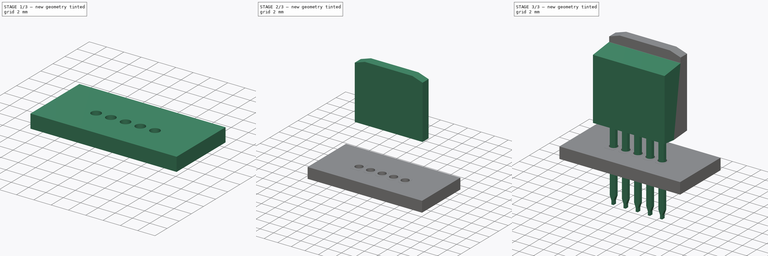
[diagram: build sequence overview — one tinted view per stage of 3, left to right]
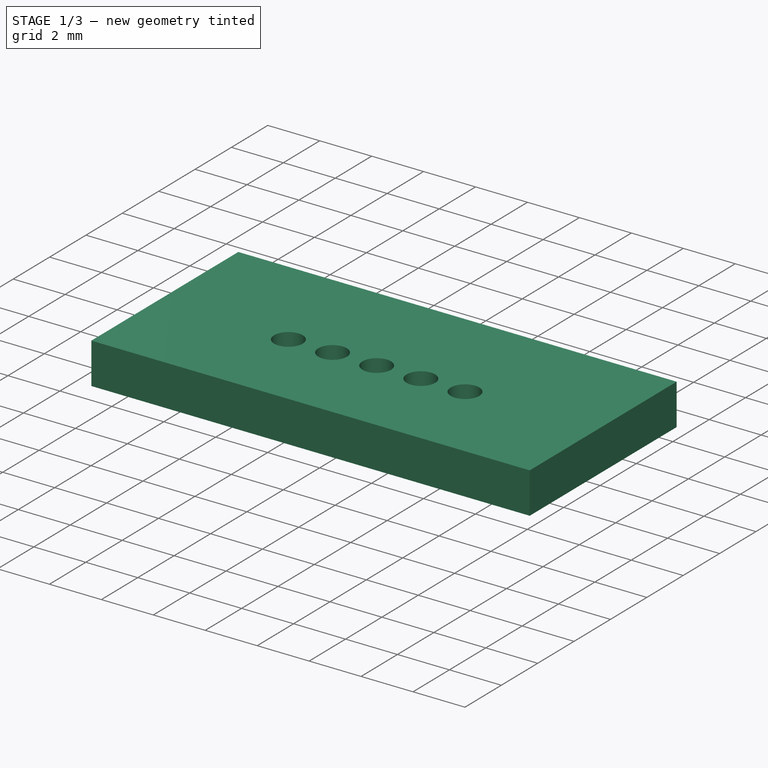
[diagram: stage 1 of 3 — iso view after this stage's code; geometry added in this stage tinted green]
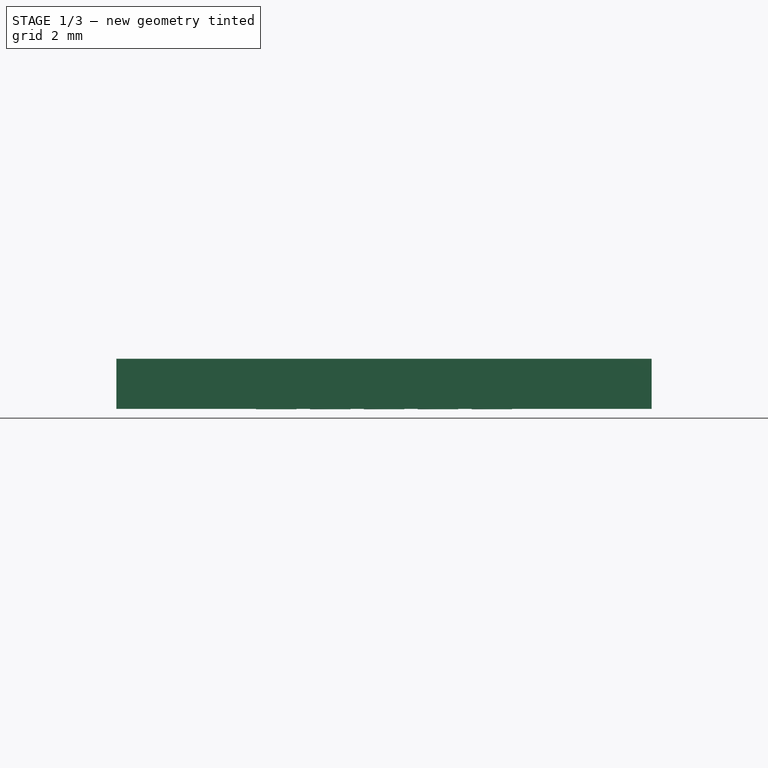
[diagram: stage 1 of 3 — front view after this stage's code; geometry added in this stage tinted green]
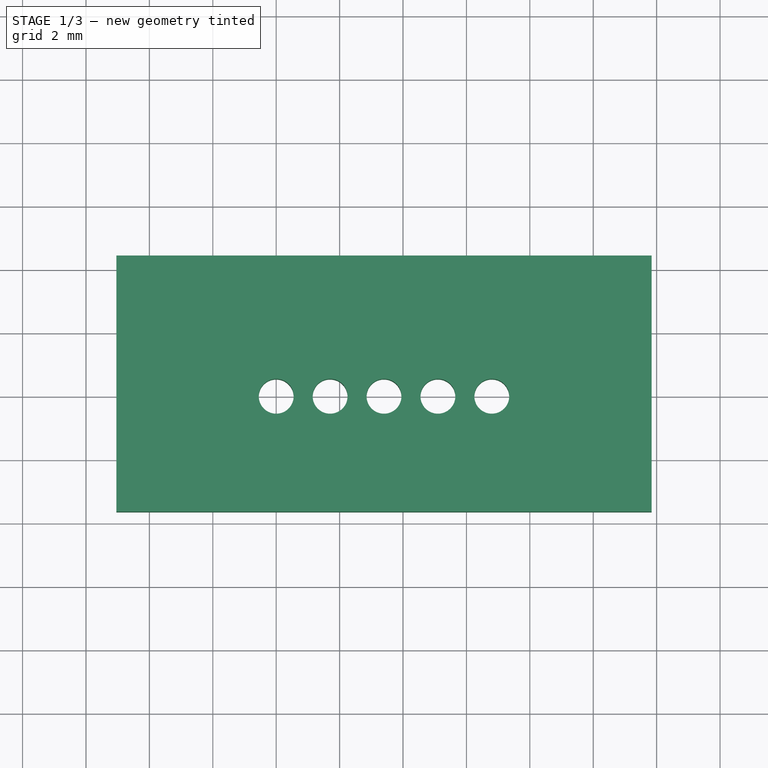
[diagram: stage 1 of 3 — top view after this stage's code; geometry added in this stage tinted green]
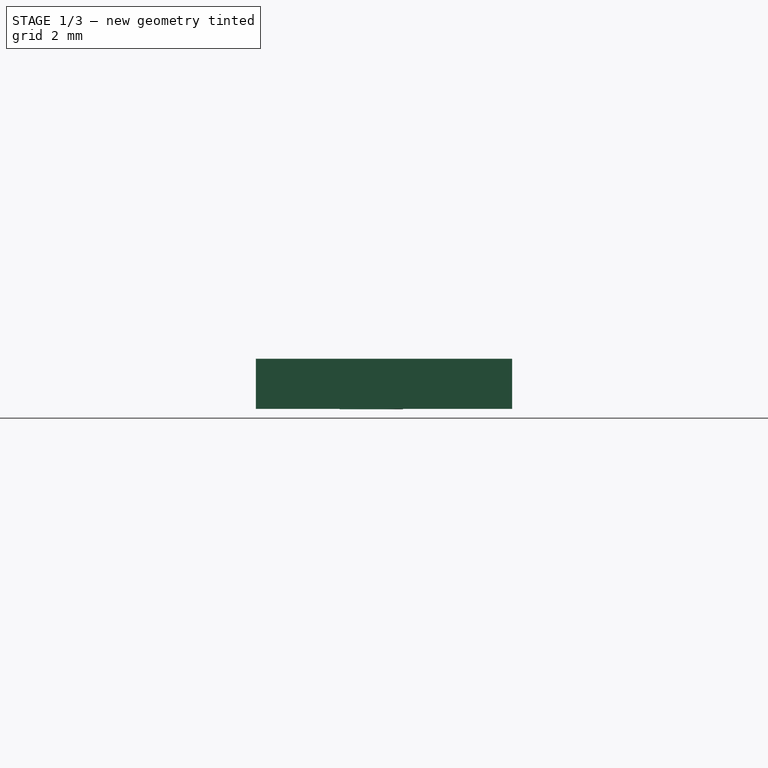
[diagram: stage 1 of 3 — right view after this stage's code; geometry added in this stage tinted green]
FCSTD DOCUMENT  (FreeCAD 0.16R6712 (Git))
Label: TO-262-5_Vertical
License: All rights reserved
LicenseURL: http://en.wikipedia.org/wiki/All_rights_reserved
objects: Part::FeaturePython×7, Sketcher::SketchObject×3, PartDesign::Pad×3, Part::MultiFuse×1, App::DocumentObjectGroup×1
note: 17 computed .brp shape members not serialized (recipe doc carries the construction recipe); baked Part::Feature solids carry a one-line shape summary decoded from their .brp

FEATURE [Part::FeaturePython] BotPads001  # a2plus imported part (geometry in sourceFile) (typed FeaturePython)
  fixedPosition = true
FEATURE [Part::FeaturePython] THPs001  label="PTHs001"  # a2plus imported part (geometry in sourceFile) (typed FeaturePython)
  fixedPosition = true
FEATURE [Part::FeaturePython] newPCB001  label="Pcb001"  # a2plus imported part (geometry in sourceFile) (typed FeaturePython)
  fixedPosition = true
FEATURE [App::DocumentObjectGroup] TO_262_5_Vertical_fp
  Group = -> [FCrtYd_lines001,FFab_lines001,Filk_lines001,TopPads001,BotPads001,THPs001,newPCB001]
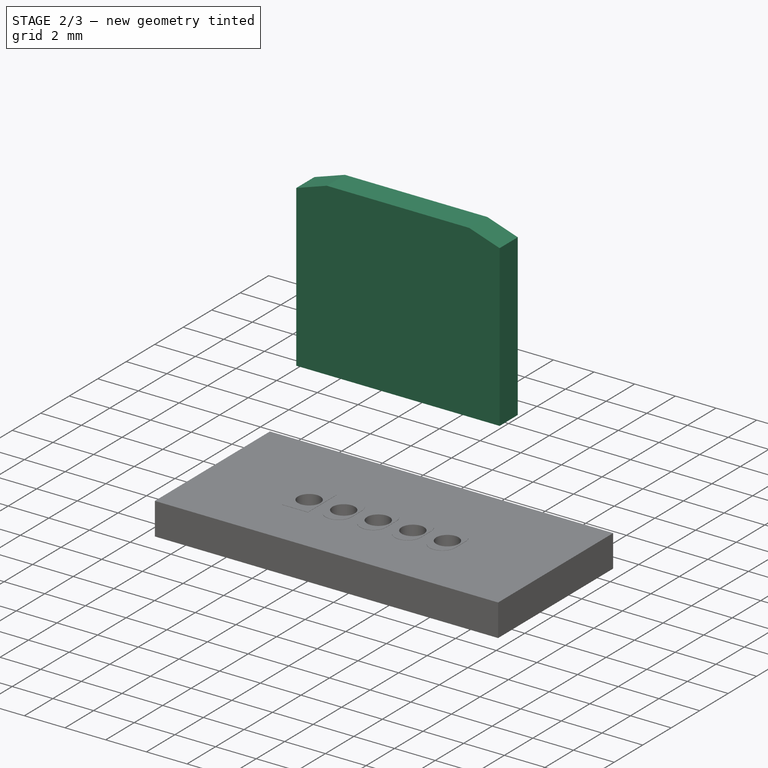
[diagram: stage 2 of 3 — iso view after this stage's code; geometry added in this stage tinted green]
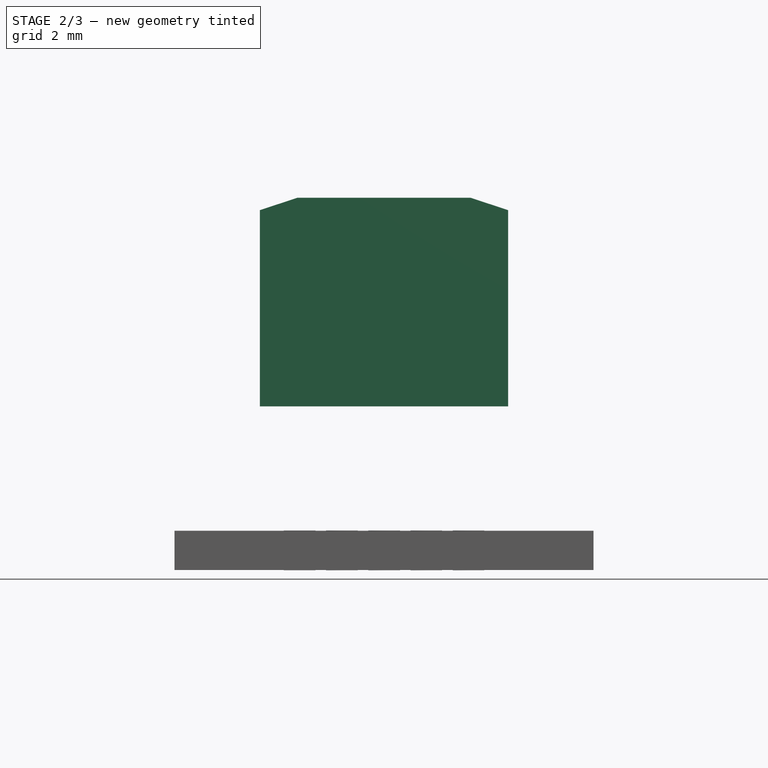
[diagram: stage 2 of 3 — front view after this stage's code; geometry added in this stage tinted green]
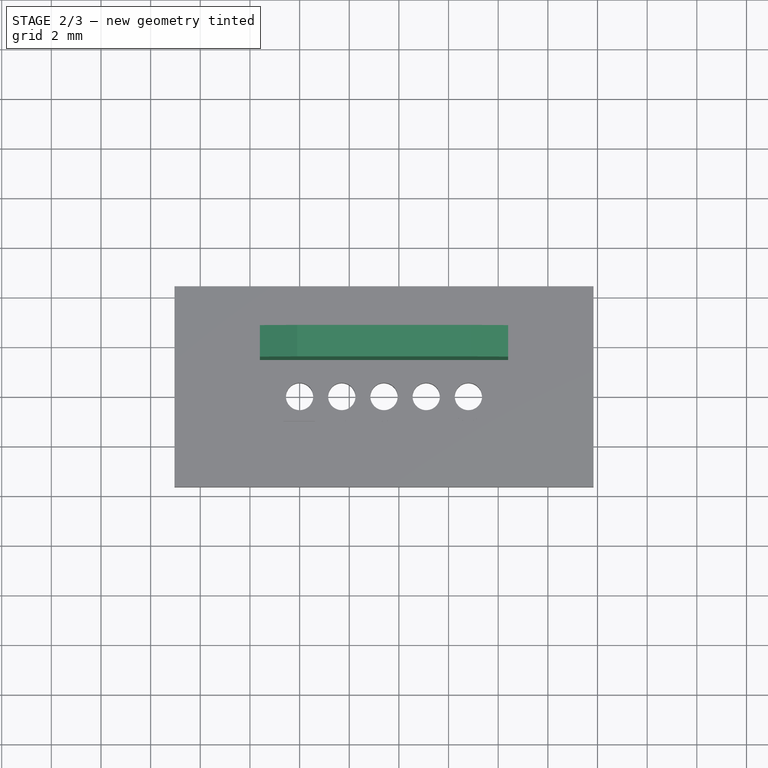
[diagram: stage 2 of 3 — top view after this stage's code; geometry added in this stage tinted green]
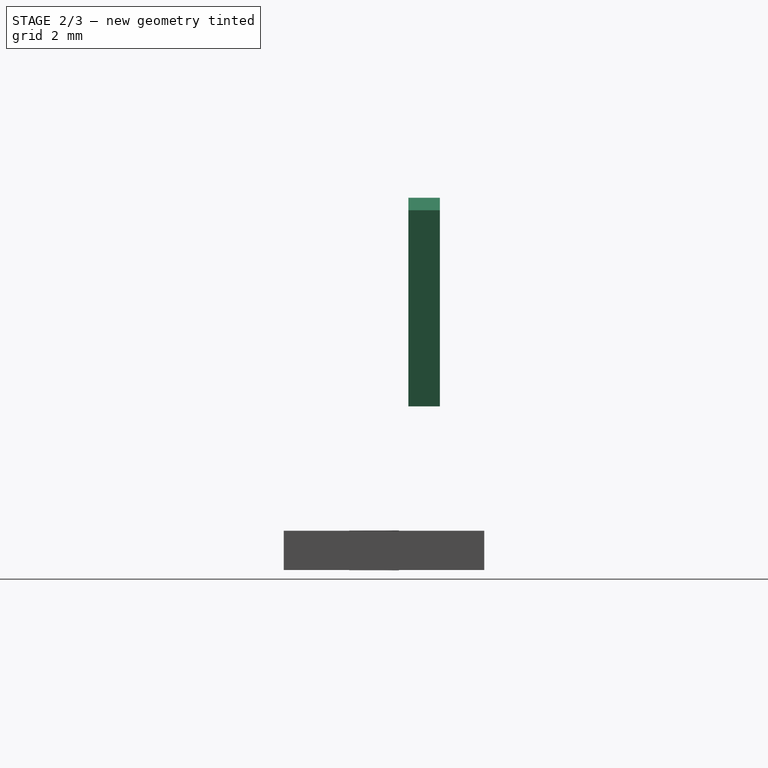
[diagram: stage 2 of 3 — right view after this stage's code; geometry added in this stage tinted green]
FEATURE [Sketcher::SketchObject] Sketch002
  Placement = pos=(0,2.651,0) rot=(1,0,0;1.5708rad)
  expr: Constraints[19] = 2 * 1.7
  sketch-geometry (7):
    g0: LineSegment StartX=8.4 StartY=12.9 StartZ=0 EndX=8.4 EndY=5 EndZ=0
    g1: LineSegment StartX=8.4 StartY=5 StartZ=0 EndX=-1.6 EndY=5 EndZ=0
    g2: LineSegment StartX=-1.6 StartY=5 StartZ=0 EndX=-1.6 EndY=12.9 EndZ=0
    g3: LineSegment StartX=-1.6 StartY=12.9 StartZ=0 EndX=-0.1 EndY=13.4 EndZ=0
    g4: LineSegment StartX=-0.1 StartY=13.4 StartZ=0 EndX=6.9 EndY=13.4 EndZ=0
    g5: LineSegment StartX=6.9 StartY=13.4 StartZ=0 EndX=8.4 EndY=12.9 EndZ=0
    g6: GeomPoint [constr] X=3.4 Y=13.4 Z=0
  constraints (20):
    c: Coincident(g0,g1)
    c: Coincident(g1,g2)
    c: Horizontal(g1)
    c: Vertical(g0)
    c: Vertical(g2)
    c: DistanceX(g2,g0) = 10
    c: DistanceY(g0,g0) = 7.9
    c: Coincident(g3,g2)
    c: Coincident(g4,g3)
    c: Horizontal(g4)
    c: Coincident(g5,g4)
    c: Coincident(g5,g0)
    c: Equal(g5,g3)
    c: DistanceY(g-1,g3) = 13.4
    c: DistanceX(g4,g4) = 7
    c: Equal(g2,g0)
    c: DistanceY(g2,g3) = 0.5
    c: PointOnObject(g6,g4)
    c: Symmetric(g4,g4,g6)
    c: DistanceX(g-1,g6) = 3.4
FEATURE [PartDesign::Pad] Pad002
  Length = 1.27
  Length2 = 100
  Placement = pos=(0,2.651,0) rot=(1,0,0;1.5708rad)
  Sketch = -> Sketch002
  Type = 0
FEATURE [Part::FeaturePython] FCrtYd_lines001  label="FCrtYd001"  # a2plus imported part (geometry in sourceFile) (typed FeaturePython)
  fixedPosition = true
FEATURE [Part::FeaturePython] FFab_lines001  label="FFab001"  # a2plus imported part (geometry in sourceFile) (typed FeaturePython)
  fixedPosition = true
FEATURE [Part::FeaturePython] Filk_lines001  label="FrontSilk001"  # a2plus imported part (geometry in sourceFile) (typed FeaturePython)
  fixedPosition = true
FEATURE [Part::FeaturePython] TopPads001  # a2plus imported part (geometry in sourceFile) (typed FeaturePython)
  fixedPosition = true
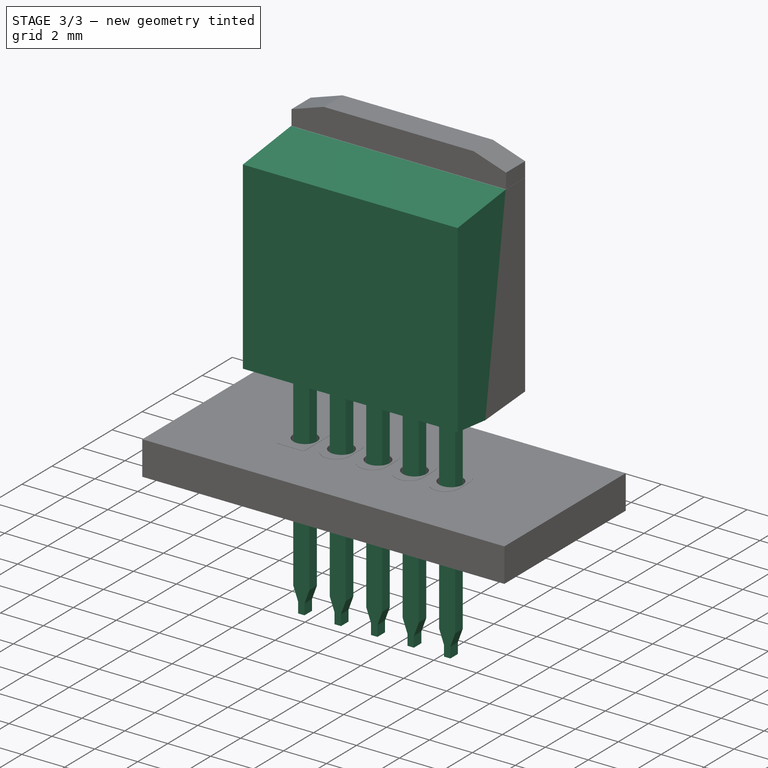
[diagram: stage 3 of 3 — iso view after this stage's code; geometry added in this stage tinted green]
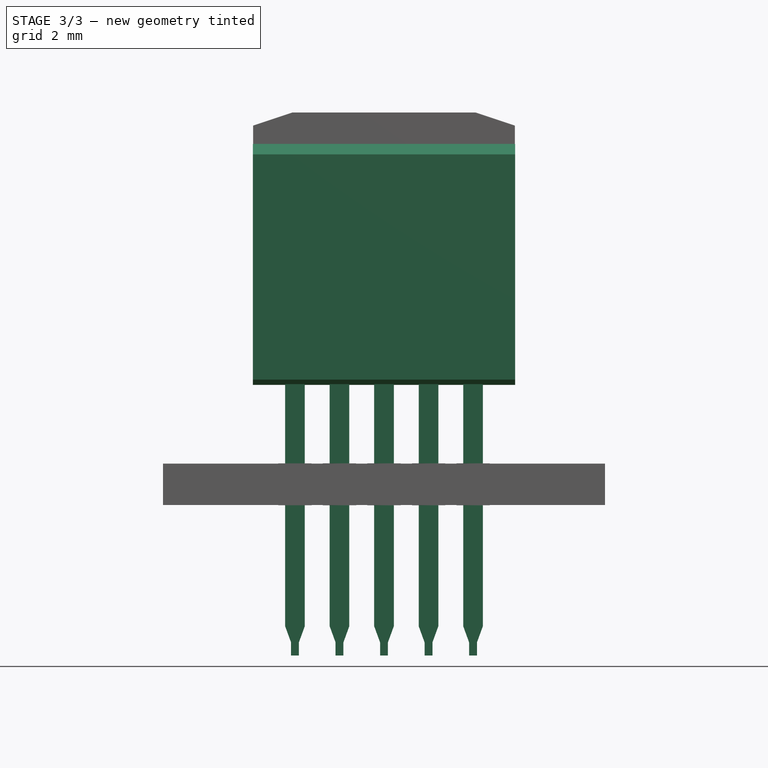
[diagram: stage 3 of 3 — front view after this stage's code; geometry added in this stage tinted green]
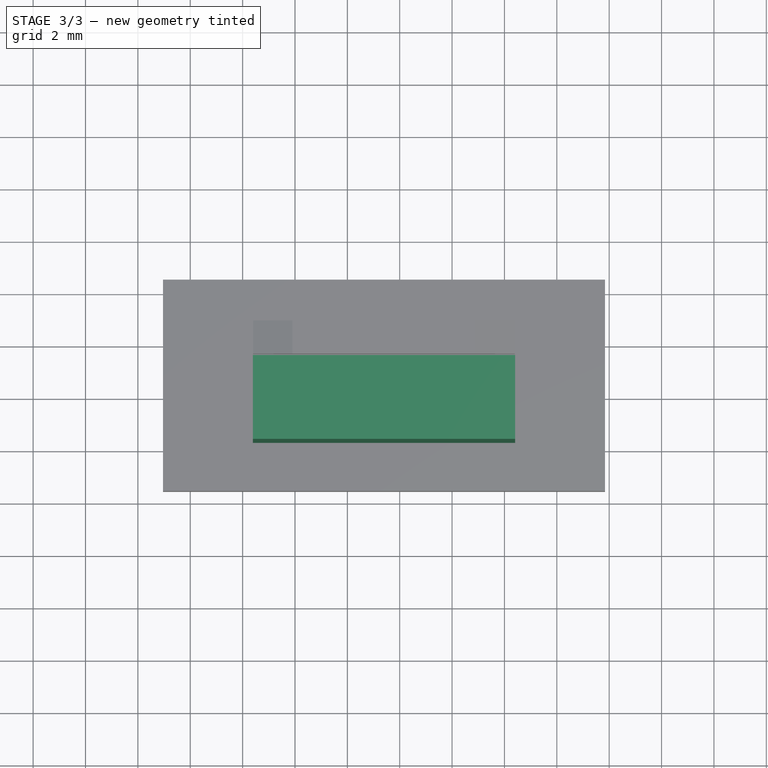
[diagram: stage 3 of 3 — top view after this stage's code; geometry added in this stage tinted green]
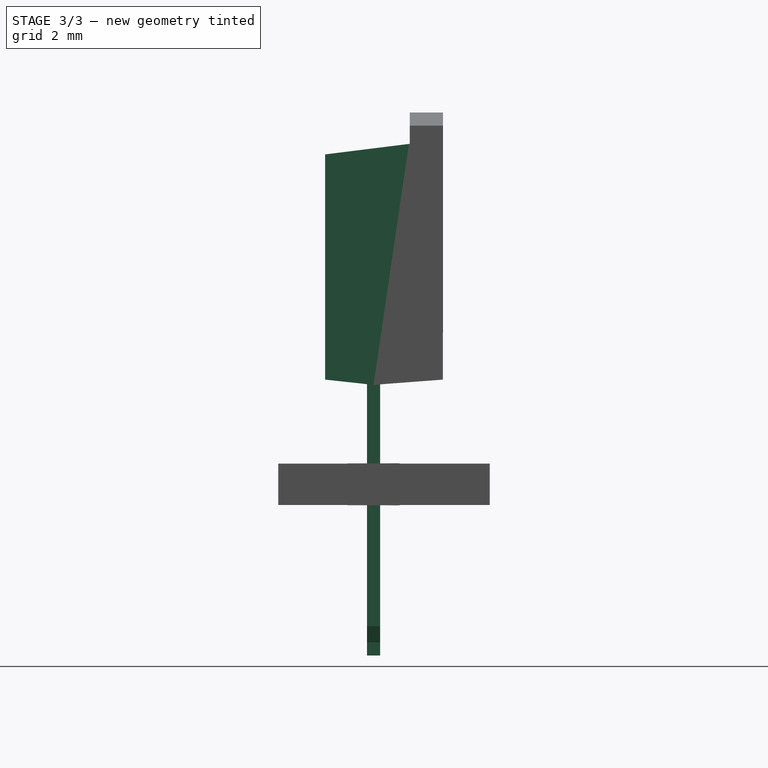
[diagram: stage 3 of 3 — right view after this stage's code; geometry added in this stage tinted green]
FEATURE [Sketcher::SketchObject] Sketch
  Placement = pos=(0,0,0) rot=(1,0,0;1.5708rad)
  sketch-geometry (85):
    g0: LineSegment StartX=0.375 StartY=0 StartZ=0 EndX=0.375 EndY=-6.21682 EndZ=0
    g1: LineSegment StartX=-0.375 StartY=-6.21682 StartZ=0 EndX=-0.375 EndY=0 EndZ=0
    g2: LineSegment StartX=0.15 StartY=-6.835 StartZ=0 EndX=0.15 EndY=-7.335 EndZ=0
    g3: LineSegment StartX=0.15 StartY=-7.335 StartZ=0 EndX=-0.15 EndY=-7.335 EndZ=0
    g4: LineSegment StartX=-0.15 StartY=-7.335 StartZ=0 EndX=-0.15 EndY=-6.835 EndZ=0
    g5: LineSegment StartX=-0.375 StartY=-6.21682 StartZ=0 EndX=-0.15 EndY=-6.835 EndZ=0
    g6: LineSegment StartX=0.375 StartY=-6.21682 StartZ=0 EndX=0.15 EndY=-6.835 EndZ=0
    g7: LineSegment [constr] StartX=0 StartY=-7.335 StartZ=0 EndX=0 EndY=4 EndZ=0
    g8: LineSegment [constr] StartX=-0.375 StartY=-6.21682 StartZ=0 EndX=0.375 EndY=-6.21682 EndZ=0
    g9: LineSegment [constr] StartX=-0.15 StartY=-6.835 StartZ=0 EndX=0.15 EndY=-6.835 EndZ=0
    g10: LineSegment [constr] StartX=-0.375 StartY=0 StartZ=0 EndX=0.375 EndY=0 EndZ=0
    g11: GeomPoint [constr] X=0 Y=0 Z=0
    g12: GeomPoint [constr] X=0 Y=-6.21682 Z=0
    g13: LineSegment StartX=-0.375 StartY=0 StartZ=0 EndX=-0.375 EndY=4 EndZ=0
    g14: LineSegment StartX=-0.375 StartY=4 StartZ=0 EndX=0.375 EndY=4 EndZ=0
    g15: LineSegment StartX=0.375 StartY=4 StartZ=0 EndX=0.375 EndY=0 EndZ=0
    g16: LineSegment StartX=2.075 StartY=0 StartZ=0 EndX=2.075 EndY=-6.21682 EndZ=0
    g17: LineSegment StartX=1.325 StartY=-6.21682 StartZ=0 EndX=1.325 EndY=0 EndZ=0
    g18: LineSegment StartX=1.85 StartY=-6.835 StartZ=0 EndX=1.85 EndY=-7.335 EndZ=0
    g19: LineSegment StartX=1.85 StartY=-7.335 StartZ=0 EndX=1.55 EndY=-7.335 EndZ=0
    g20: LineSegment StartX=1.55 StartY=-7.335 StartZ=0 EndX=1.55 EndY=-6.835 EndZ=0
    g21: LineSegment StartX=1.325 StartY=-6.21682 StartZ=0 EndX=1.55 EndY=-6.835 EndZ=0
    g22: LineSegment StartX=2.075 StartY=-6.21682 StartZ=0 EndX=1.85 EndY=-6.835 EndZ=0
    g23: LineSegment [constr] StartX=1.7 StartY=-7.335 StartZ=0 EndX=1.7 EndY=4 EndZ=0
    g24: LineSegment [constr] StartX=1.325 StartY=-6.21682 StartZ=0 EndX=2.075 EndY=-6.21682 EndZ=0
    g25: LineSegment [constr] StartX=1.55 StartY=-6.835 StartZ=0 EndX=1.85 EndY=-6.835 EndZ=0
    g26: LineSegment [constr] StartX=1.325 StartY=0 StartZ=0 EndX=2.075 EndY=0 EndZ=0
    g27: GeomPoint [constr] X=1.7 Y=0 Z=0
    g28: GeomPoint [constr] X=1.7 Y=-6.21682 Z=0
    g29: LineSegment StartX=1.325 StartY=0 StartZ=0 EndX=1.325 EndY=4 EndZ=0
    g30: LineSegment StartX=1.325 StartY=4 StartZ=0 EndX=2.075 EndY=4 EndZ=0
    g31: LineSegment StartX=2.075 StartY=4 StartZ=0 EndX=2.075 EndY=0 EndZ=0
    g32: LineSegment [constr] StartX=0 StartY=4 StartZ=0 EndX=1.7 EndY=4 EndZ=0
    g33: LineSegment [constr] StartX=0 StartY=-7.335 StartZ=0 EndX=6.8 EndY=-7.335 EndZ=0
    g34: LineSegment StartX=3.775 StartY=0 StartZ=0 EndX=3.775 EndY=-6.21682 EndZ=0
    g35: LineSegment StartX=3.025 StartY=-6.21682 StartZ=0 EndX=3.025 EndY=0 EndZ=0
    g36: LineSegment StartX=3.55 StartY=-6.835 StartZ=0 EndX=3.55 EndY=-7.335 EndZ=0
    g37: LineSegment StartX=3.55 StartY=-7.335 StartZ=0 EndX=3.25 EndY=-7.335 EndZ=0
    g38: LineSegment StartX=3.25 StartY=-7.335 StartZ=0 EndX=3.25 EndY=-6.835 EndZ=0
    g39: LineSegment StartX=3.025 StartY=-6.21682 StartZ=0 EndX=3.25 EndY=-6.835 EndZ=0
    g40: LineSegment StartX=3.775 StartY=-6.21682 StartZ=0 EndX=3.55 EndY=-6.835 EndZ=0
    g41: LineSegment [constr] StartX=3.4 StartY=-7.335 StartZ=0 EndX=3.4 EndY=4 EndZ=0
    g42: LineSegment [constr] StartX=3.025 StartY=-6.21682 StartZ=0 EndX=3.775 EndY=-6.21682 EndZ=0
    g43: LineSegment [constr] StartX=3.25 StartY=-6.835 StartZ=0 EndX=3.55 EndY=-6.835 EndZ=0
    g44: LineSegment [constr] StartX=3.025 StartY=0 StartZ=0 EndX=3.775 EndY=0 EndZ=0
    g45: GeomPoint [constr] X=3.4 Y=0 Z=0
    g46: GeomPoint [constr] X=3.4 Y=-6.21682 Z=0
    g47: LineSegment StartX=3.025 StartY=0 StartZ=0 EndX=3.025 EndY=4 EndZ=0
    g48: LineSegment StartX=3.025 StartY=4 StartZ=0 EndX=3.775 EndY=4 EndZ=0
    g49: LineSegment StartX=3.775 StartY=4 StartZ=0 EndX=3.775 EndY=0 EndZ=0
    g50: LineSegment StartX=5.475 StartY=0 StartZ=0 EndX=5.475 EndY=-6.21682 EndZ=0
    g51: LineSegment StartX=4.725 StartY=-6.21682 StartZ=0 EndX=4.725 EndY=0 EndZ=0
    g52: LineSegment StartX=5.25 StartY=-6.835 StartZ=0 EndX=5.25 EndY=-7.335 EndZ=0
    g53: LineSegment StartX=5.25 StartY=-7.335 StartZ=0 EndX=4.95 EndY=-7.335 EndZ=0
    g54: LineSegment StartX=4.95 StartY=-7.335 StartZ=0 EndX=4.95 EndY=-6.835 EndZ=0
    g55: LineSegment StartX=4.725 StartY=-6.21682 StartZ=0 EndX=4.95 EndY=-6.835 EndZ=0
    g56: LineSegment StartX=5.475 StartY=-6.21682 StartZ=0 EndX=5.25 EndY=-6.835 EndZ=0
    g57: LineSegment [constr] StartX=5.1 StartY=-7.335 StartZ=0 EndX=5.1 EndY=4 EndZ=0
    g58: LineSegment [constr] StartX=4.725 StartY=-6.21682 StartZ=0 EndX=5.475 EndY=-6.21682 EndZ=0
    g59: LineSegment [constr] StartX=4.95 StartY=-6.835 StartZ=0 EndX=5.25 EndY=-6.835 EndZ=0
    g60: LineSegment [constr] StartX=4.725 StartY=0 StartZ=0 EndX=5.475 EndY=0 EndZ=0
    g61: GeomPoint [constr] X=5.1 Y=0 Z=0
    g62: GeomPoint [constr] X=5.1 Y=-6.21682 Z=0
    g63: LineSegment StartX=4.725 StartY=0 StartZ=0 EndX=4.725 EndY=4 EndZ=0
    g64: LineSegment StartX=4.725 StartY=4 StartZ=0 EndX=5.475 EndY=4 EndZ=0
    g65: LineSegment StartX=5.475 StartY=4 StartZ=0 EndX=5.475 EndY=0 EndZ=0
    g66: LineSegment StartX=7.175 StartY=0 StartZ=0 EndX=7.175 EndY=-6.21682 EndZ=0
    g67: LineSegment StartX=6.425 StartY=-6.21682 StartZ=0 EndX=6.425 EndY=0 EndZ=0
    g68: LineSegment StartX=6.95 StartY=-6.835 StartZ=0 EndX=6.95 EndY=-7.335 EndZ=0
    g69: LineSegment StartX=6.95 StartY=-7.335 StartZ=0 EndX=6.65 EndY=-7.335 EndZ=0
    g70: LineSegment StartX=6.65 StartY=-7.335 StartZ=0 EndX=6.65 EndY=-6.835 EndZ=0
    g71: LineSegment StartX=6.425 StartY=-6.21682 StartZ=0 EndX=6.65 EndY=-6.835 EndZ=0
    g72: LineSegment StartX=7.175 StartY=-6.21682 StartZ=0 EndX=6.95 EndY=-6.835 EndZ=0
    g73: LineSegment [constr] StartX=6.8 StartY=-7.335 StartZ=0 EndX=6.8 EndY=4 EndZ=0
    g74: LineSegment [constr] StartX=6.425 StartY=-6.21682 StartZ=0 EndX=7.175 EndY=-6.21682 EndZ=0
    g75: LineSegment [constr] StartX=6.65 StartY=-6.835 StartZ=0 EndX=6.95 EndY=-6.835 EndZ=0
    g76: LineSegment [constr] StartX=6.425 StartY=0 StartZ=0 EndX=7.175 EndY=0 EndZ=0
    g77: GeomPoint [constr] X=6.8 Y=0 Z=0
    g78: GeomPoint [constr] X=6.8 Y=-6.21682 Z=0
    g79: LineSegment StartX=6.425 StartY=0 StartZ=0 EndX=6.425 EndY=4 EndZ=0
    g80: LineSegment StartX=6.425 StartY=4 StartZ=0 EndX=7.175 EndY=4 EndZ=0
    g81: LineSegment StartX=7.175 StartY=4 StartZ=0 EndX=7.175 EndY=0 EndZ=0
    g82: LineSegment [constr] StartX=1.7 StartY=4 StartZ=0 EndX=3.4 EndY=4 EndZ=0
    g83: LineSegment [constr] StartX=3.4 StartY=4 StartZ=0 EndX=5.1 EndY=4 EndZ=0
    g84: LineSegment [constr] StartX=5.1 StartY=4 StartZ=0 EndX=6.8 EndY=4 EndZ=0
  constraints (219):
    c: Vertical(g0)
    c: Vertical(g1)
    c: Coincident(g2,g3)
    c: Coincident(g3,g4)
    c: Horizontal(g3)
    c: Vertical(g2)
    c: Vertical(g4)
    c: Coincident(g6,g0)
    c: Coincident(g1,g5)
    c: PointOnObject(g7,g3)
    c: Symmetric(g3,g3,g7)
    c: Coincident(g4,g5)
    c: Coincident(g2,g6)
    c: Coincident(g8,g1)
    c: Horizontal(g8)
    c: Coincident(g9,g4)
    c: Horizontal(g9)
    c: Coincident(g10,g1)
    c: PointOnObject(g11,g7)
    c: PointOnObject(g12,g7)
    c: Coincident(g2,g9)
    c: Symmetric(g8,g8,g12)
    c: Symmetric(g10,g10,g11)
    c: DistanceX(g8,g8) = 0.75
    c: DistanceY(g7,g-1) = 7.335
    c: DistanceY(g4,g4) = 0.5
    c: DistanceX(g3,g3) = 0.3
    c: Angle(g0,g6) = 2.79253
    c: Coincident(g8,g0)
    c: Coincident(g11,g-1)
    c: Coincident(g10,g0)
    c: Horizontal(g10)
    c: Coincident(g13,g1)
    c: Vertical(g13)
    c: Coincident(g14,g13)
    c: Horizontal(g14)
    c: Coincident(g15,g14)
    c: Coincident(g15,g0)
    c: Vertical(g15)
    c: PointOnObject(g7,g14)
    c: DistanceY(g13,g13) = 4
    c: Vertical(g16)
    c: Vertical(g17)
    c: Coincident(g18,g19)
    c: Coincident(g19,g20)
    c: Horizontal(g19)
    c: Vertical(g18)
    c: Vertical(g20)
    c: Coincident(g22,g16)
    c: Coincident(g17,g21)
    c: PointOnObject(g23,g19)
    c: Symmetric(g19,g19,g23)
    c: Coincident(g20,g21)
    c: Coincident(g18,g22)
    c: Coincident(g24,g17)
    c: Horizontal(g24)
    c: Coincident(g25,g20)
    c: Horizontal(g25)
    c: Coincident(g26,g17)
    c: PointOnObject(g27,g23)
    c: PointOnObject(g28,g23)
    c: Coincident(g18,g25)
    c: Symmetric(g24,g24,g28)
    c: Symmetric(g26,g26,g27)
    c: Equal(g8,g24) = 0.75
    c: Equal(g4,g20) = 0.5
    c: Equal(g3,g19) = 0.3
    c: Angle(g16,g22) = 2.79253
    c: Coincident(g24,g16)
    c: Coincident(g26,g16)
    c: Horizontal(g26)
    c: Coincident(g29,g17)
    c: Vertical(g29)
    c: Coincident(g30,g29)
    c: Horizontal(g30)
    c: Coincident(g31,g30)
    c: Coincident(g31,g16)
    c: Vertical(g31)
    c: PointOnObject(g23,g30)
    c: Equal(g13,g29) = 4
    c: Coincident(g32,g7)
    c: Coincident(g32,g23)
    c: Horizontal(g32)
    c: DistanceX(g32,g32) = 1.7
    c: Coincident(g33,g7)
    c: Horizontal(g33)
    c: PointOnObject(g23,g33)
    c: Vertical(g34)
    c: Vertical(g35)
    c: Coincident(g36,g37)
    c: Coincident(g37,g38)
    c: Horizontal(g37)
    c: Vertical(g36)
    c: Vertical(g38)
    c: Coincident(g40,g34)
    c: Coincident(g35,g39)
    c: PointOnObject(g41,g37)
    c: Symmetric(g37,g37,g41)
    c: Coincident(g38,g39)
    c: Coincident(g36,g40)
    c: Coincident(g42,g35)
    c: Horizontal(g42)
    c: Coincident(g43,g38)
    c: Horizontal(g43)
    c: Coincident(g44,g35)
    c: PointOnObject(g45,g41)
    c: PointOnObject(g46,g41)
    c: Coincident(g36,g43)
    c: Symmetric(g42,g42,g46)
    c: Symmetric(g44,g44,g45)
    c: Equal(g8,g42) = 0.75
    c: Equal(g4,g38) = 0.5
    c: Equal(g3,g37) = 0.3
    c: Angle(g34,g40) = 2.79253
    c: Coincident(g42,g34)
    c: Coincident(g44,g34)
    c: Horizontal(g44)
    c: Coincident(g47,g35)
    c: Vertical(g47)
    c: Coincident(g48,g47)
    c: Horizontal(g48)
    c: Coincident(g49,g48)
    c: Coincident(g49,g34)
    c: Vertical(g49)
    c: PointOnObject(g41,g48)
    c: Equal(g13,g47) = 4
    c: Vertical(g50)
    c: Vertical(g51)
    c: Coincident(g52,g53)
    c: Coincident(g53,g54)
    c: Horizontal(g53)
    c: Vertical(g52)
    c: Vertical(g54)
    c: Coincident(g56,g50)
    c: Coincident(g51,g55)
    c: PointOnObject(g57,g53)
    c: Symmetric(g53,g53,g57)
    c: Coincident(g54,g55)
    c: Coincident(g52,g56)
    c: Coincident(g58,g51)
    c: Horizontal(g58)
    c: Coincident(g59,g54)
    c: Horizontal(g59)
    c: Coincident(g60,g51)
    c: PointOnObject(g61,g57)
    c: PointOnObject(g62,g57)
    c: Coincident(g52,g59)
    c: Symmetric(g58,g58,g62)
    c: Symmetric(g60,g60,g61)
    c: Equal(g8,g58) = 0.75
    c: Equal(g4,g54) = 0.5
    c: Equal(g3,g53) = 0.3
    c: Angle(g50,g56) = 2.79253
    c: Coincident(g58,g50)
    c: Coincident(g60,g50)
    c: Horizontal(g60)
    c: Coincident(g63,g51)
    c: Vertical(g63)
    c: Coincident(g64,g63)
    c: Horizontal(g64)
    c: Coincident(g65,g64)
    c: Coincident(g65,g50)
    c: Vertical(g65)
    c: PointOnObject(g57,g64)
    c: Equal(g13,g63) = 4
    c: Vertical(g66)
    c: Vertical(g67)
    c: Coincident(g68,g69)
    c: Coincident(g69,g70)
    c: Horizontal(g69)
    c: Vertical(g68)
    c: Vertical(g70)
    c: Coincident(g72,g66)
    c: Coincident(g67,g71)
    c: PointOnObject(g73,g69)
    c: Symmetric(g69,g69,g73)
    c: Coincident(g70,g71)
    c: Coincident(g68,g72)
    c: Coincident(g74,g67)
    c: Horizontal(g74)
    c: Coincident(g75,g70)
    c: Horizontal(g75)
    c: Coincident(g76,g67)
    c: PointOnObject(g77,g73)
    c: PointOnObject(g78,g73)
    c: Coincident(g68,g75)
    c: Symmetric(g74,g74,g78)
    c: Symmetric(g76,g76,g77)
    c: Equal(g8,g74) = 0.75
    c: Equal(g4,g70) = 0.5
    c: Equal(g3,g69) = 0.3
    c: Angle(g66,g72) = 2.79253
    c: Coincident(g74,g66)
    c: Coincident(g76,g66)
    c: Horizontal(g76)
    c: Coincident(g79,g67)
    c: Vertical(g79)
    c: Coincident(g80,g79)
    c: Horizontal(g80)
    c: Coincident(g81,g80)
    c: Coincident(g81,g66)
    c: Vertical(g81)
    c: PointOnObject(g73,g80)
    c: Equal(g13,g79) = 4
    c: Coincident(g82,g23)
    c: Coincident(g82,g41)
    c: Horizontal(g82)
    c: Coincident(g83,g41)
    c: Coincident(g83,g57)
    c: Horizontal(g83)
    c: Coincident(g84,g57)
    c: Coincident(g84,g73)
    c: Horizontal(g84)
    c: Equal(g84,g83)
    c: Equal(g83,g82)
    c: Equal(g82,g32)
    c: PointOnObject(g57,g33)
    c: Coincident(g73,g33)
    c: PointOnObject(g41,g33)
FEATURE [PartDesign::Pad] Pad
  Length = 0.5
  Length2 = 100
  Midplane = true
  Placement = pos=(0,0,0) rot=(1,0,0;1.5708rad)
  Reversed = true
  Sketch = -> Sketch
  Type = 0
FEATURE [Sketcher::SketchObject] Sketch001
  Placement = pos=(3.4,0,0) rot=(0.57735,0.57735,0.57735;2.0944rad)
  expr: Placement.Base.x = 2 * 1.7
  sketch-geometry (7):
    g0: LineSegment StartX=0 StartY=3 StartZ=0 EndX=-1.85 EndY=3.2 EndZ=0
    g1: LineSegment StartX=-1.85 StartY=3.2 StartZ=0 EndX=-1.85 EndY=11.8 EndZ=0
    g2: LineSegment StartX=-1.85 StartY=11.8 StartZ=0 EndX=1.35 EndY=12.2 EndZ=0
    g3: LineSegment StartX=1.35 StartY=12.2 StartZ=0 EndX=2.65 EndY=12.2 EndZ=0
    g4: LineSegment StartX=2.65 StartY=12.2 StartZ=0 EndX=2.65 EndY=3.2 EndZ=0
    g5: LineSegment StartX=2.65 StartY=3.2 StartZ=0 EndX=0 EndY=3 EndZ=0
    g6: LineSegment [constr] StartX=-1.85 StartY=3.2 StartZ=0 EndX=2.65 EndY=3.2 EndZ=0
  constraints (20):
    c: PointOnObject(g0,g-2)
    c: Coincident(g1,g0)
    c: Vertical(g1)
    c: Coincident(g2,g1)
    c: Horizontal(g3)
    c: Coincident(g4,g3)
    c: Vertical(g4)
    c: Coincident(g5,g4)
    c: Coincident(g5,g0)
    c: Coincident(g6,g0)
    c: Coincident(g6,g4)
    c: Horizontal(g6)
    c: DistanceX(g0,g4) = 2.65
    c: DistanceX(g1,g3) = 4.5
    c: DistanceY(g0,g4) = 0.2
    c: DistanceY(g0,g3) = 9.2
    c: Coincident(g2,g3)
    c: DistanceY(g-1,g0) = 3
    c: DistanceX(g3,g3) = 1.3
    c: DistanceY(g1,g2) = 0.4
FEATURE [PartDesign::Pad] Pad001
  Length = 10.01
  Length2 = 100
  Midplane = true
  Placement = pos=(3.4,0,0) rot=(0.57735,0.57735,0.57735;2.0944rad)
  Sketch = -> Sketch001
  Type = 0
FEATURE [Part::MultiFuse] Pad001_mp_cp  label="TO-262-5_Vertical"
  Shapes = -> [Pad001,Pad,Pad002]
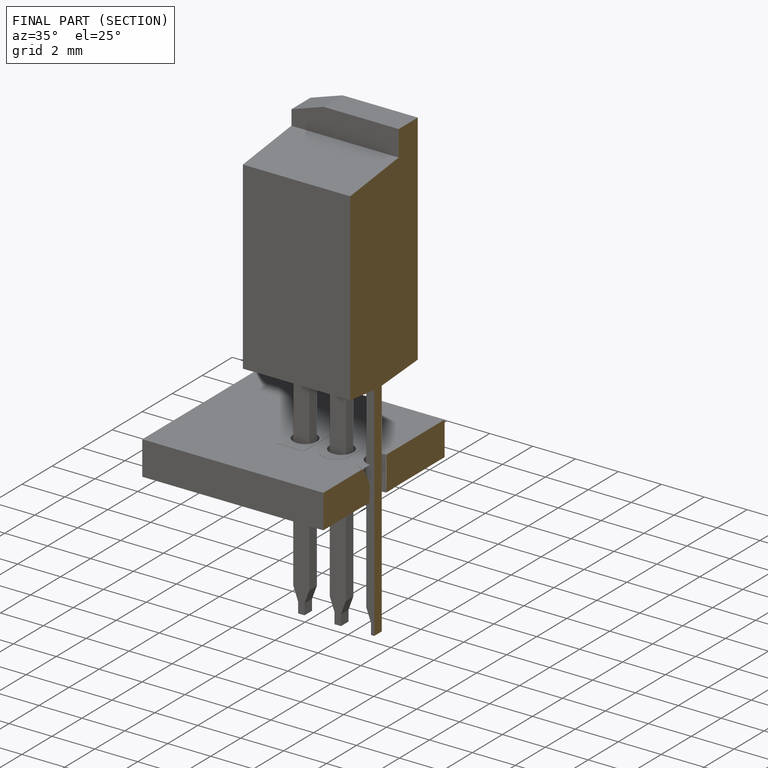
[diagram: finished part — half-section view (interior)]
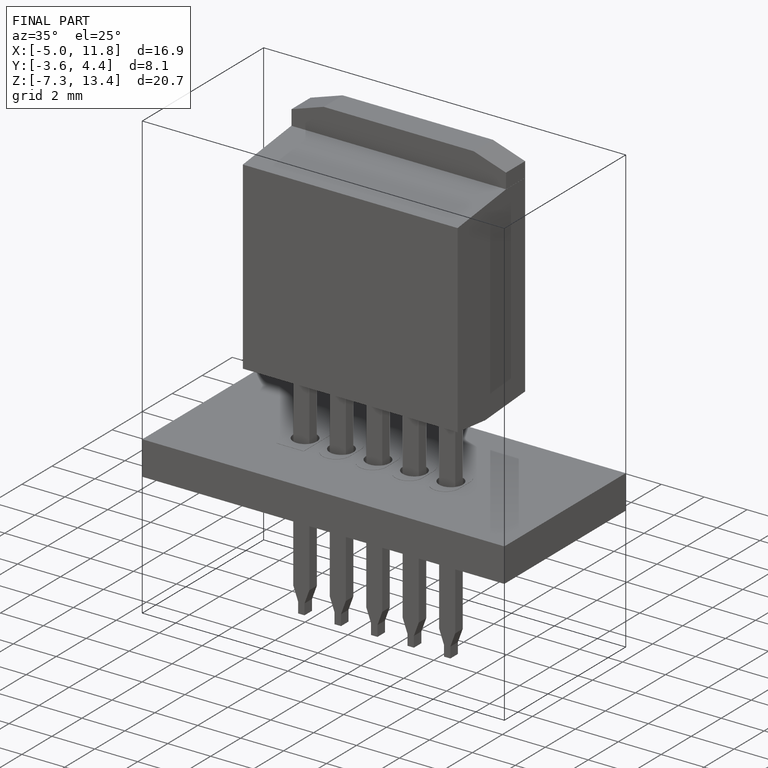
[diagram: finished part — iso view with bounding-box wireframe]
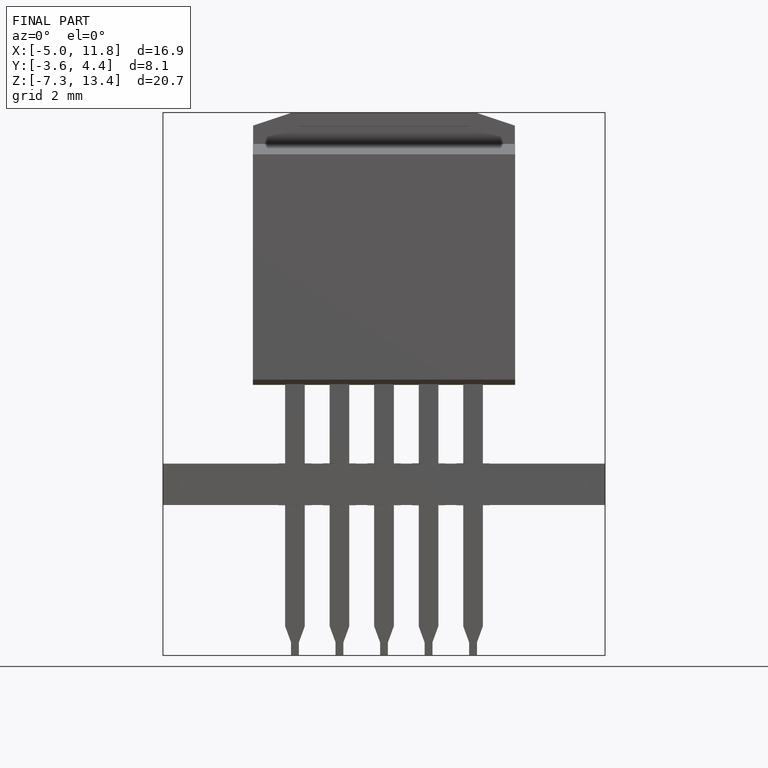
[diagram: finished part — front view with bounding-box wireframe]
